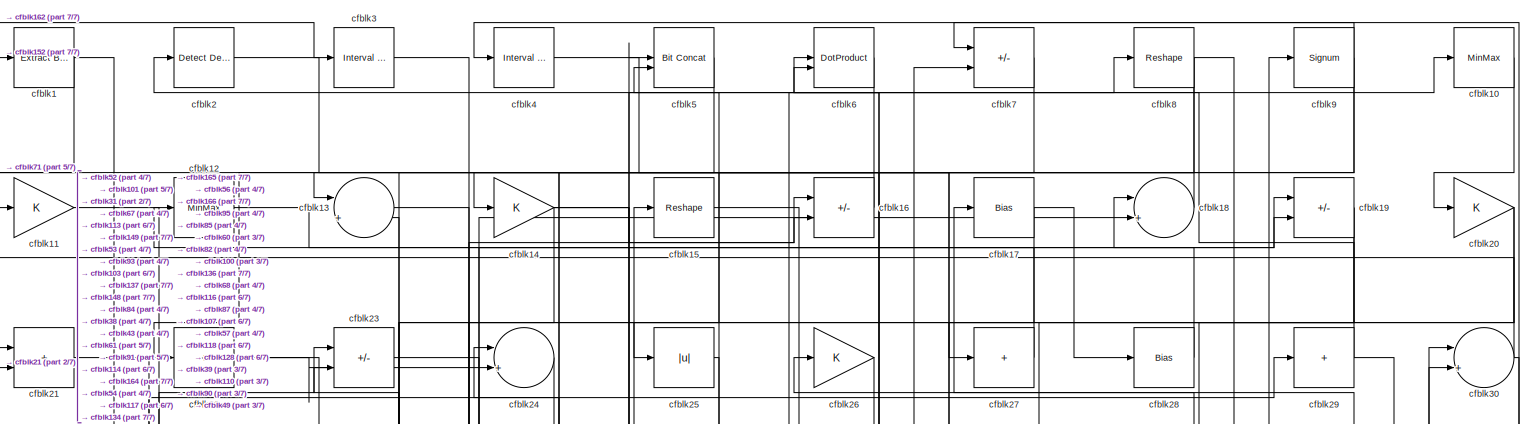
[diagram: root canvas - part 1/7, full width, top band]
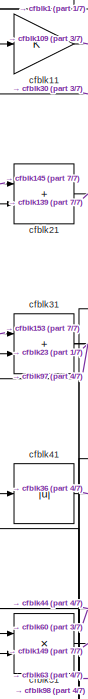
[diagram: root canvas - part 2/7, top left region]
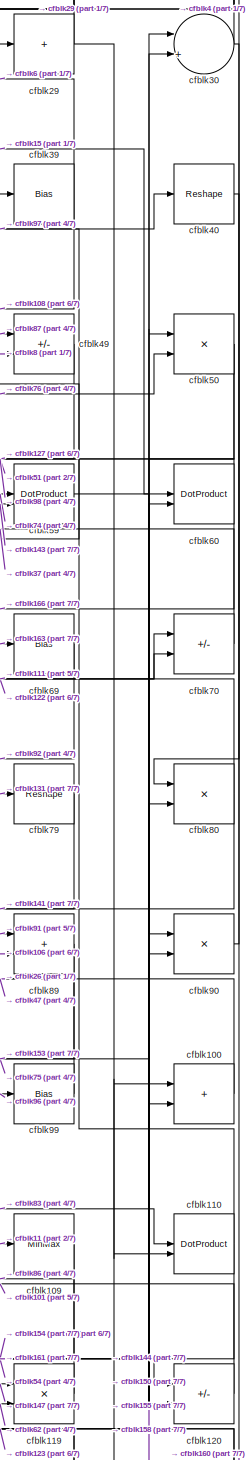
[diagram: root canvas - part 3/7, middle right region]
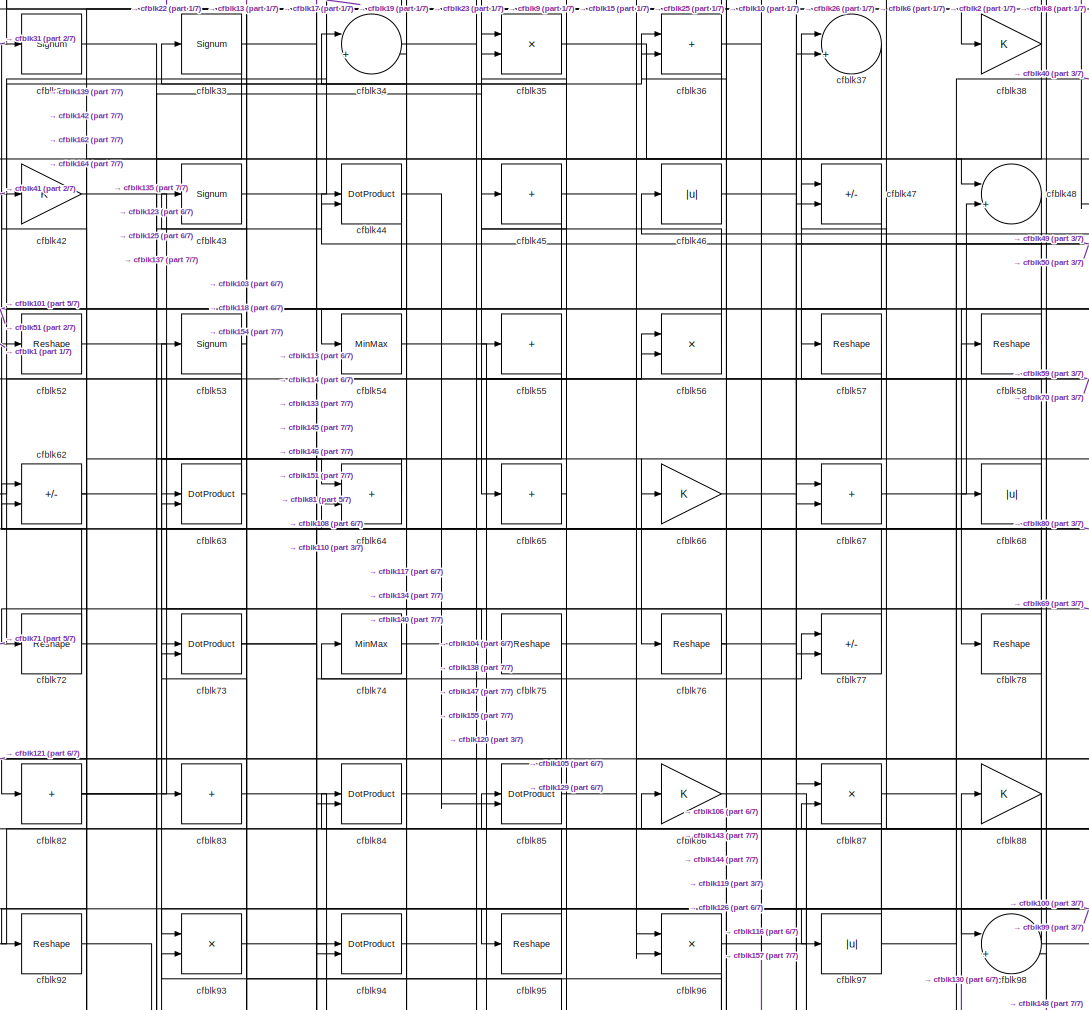
[diagram: root canvas - part 4/7, central region]
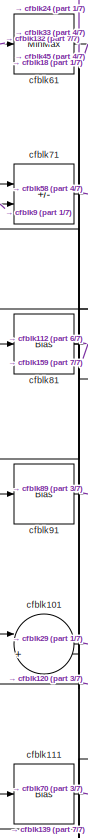
[diagram: root canvas - part 5/7, middle left region]
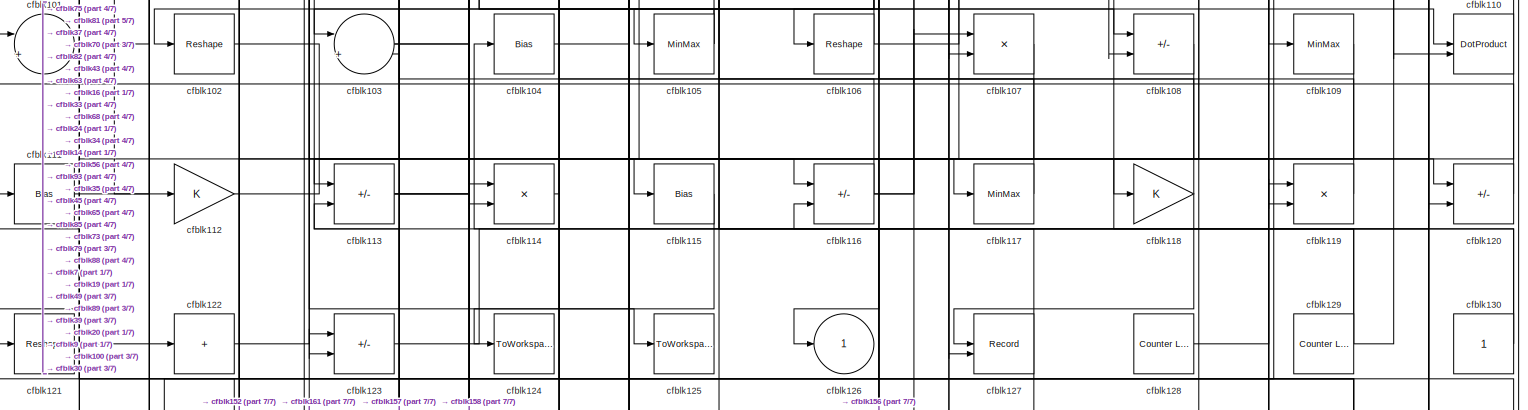
[diagram: root canvas - part 6/7, full width, bottom band]
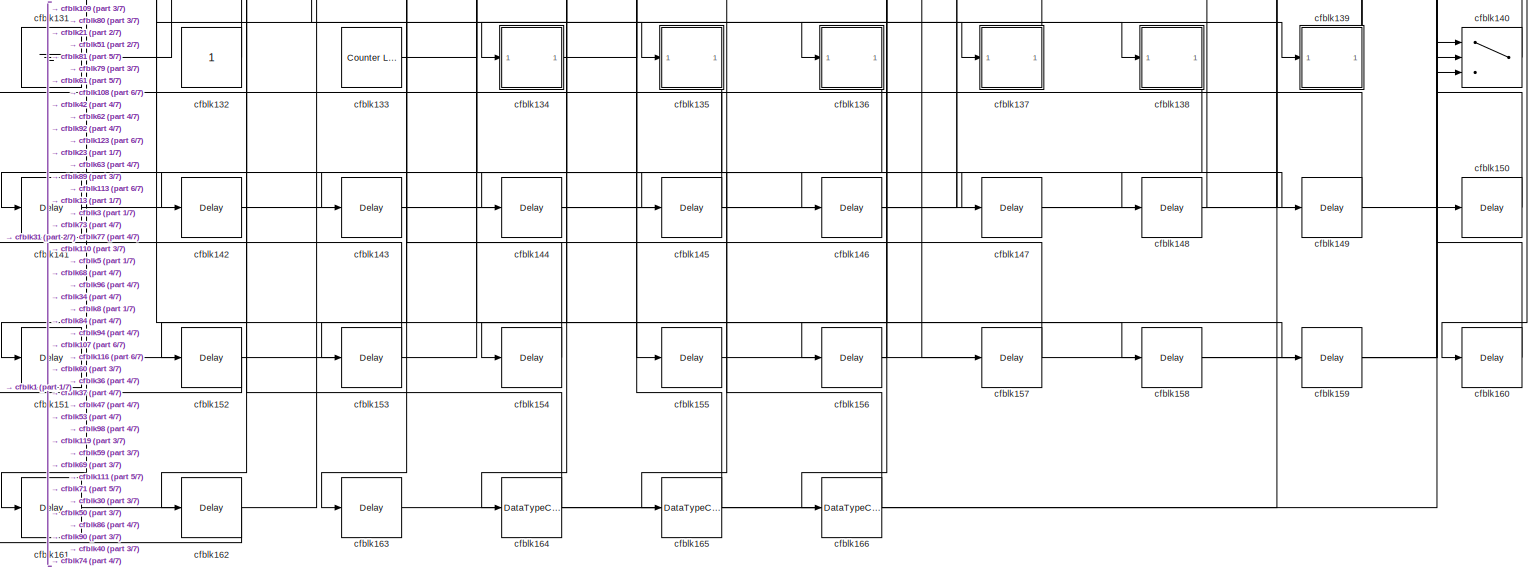
[diagram: root canvas - part 7/7, full width, bottom band]
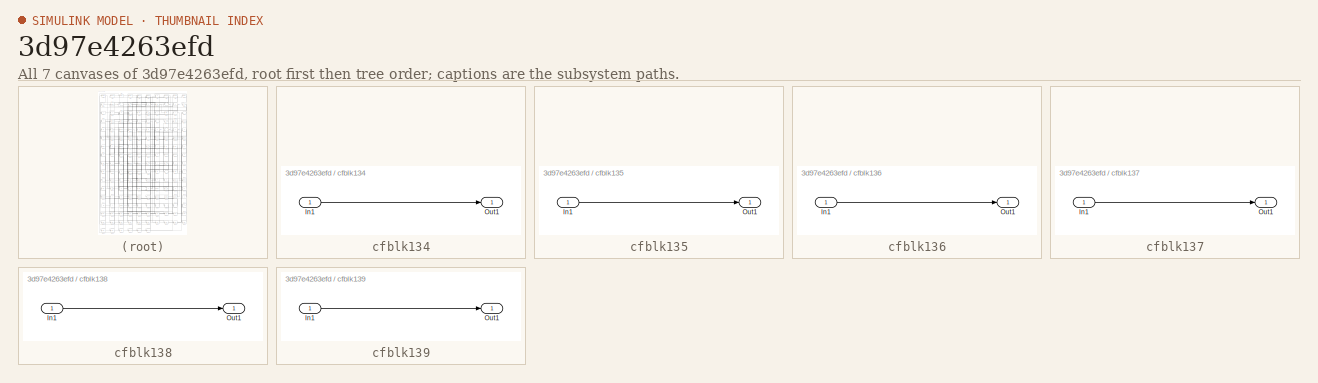
[diagram: thumbnail index - all 7 canvases of the model, root first then tree order]
MODEL slx_3d97e4263efd
KIND model
CONFIG AbsTol = auto
CONFIG EnableMultiTasking = off
CONFIG FixedStep = auto
CONFIG MaxStep = auto
CONFIG MinStep = auto
CONFIG RelTol = 1e-3
CONFIG SampleTimeConstraint = Unconstrained
CONFIG SolverName = VariableStepAuto
CONFIG StartTime = 0.0
CONFIG StopTime = 10.0
BLOCK [Reference] cfblk1  REF=simulink/Logic and Bit
Operations/Extract Bits
  LibrarySourceBlock = hdlsllib/Logic and Bit\nOperations/Extract Bits
  SourceBlock = simulink/Logic and Bit\nOperations/Extract Bits
  SourceType = Extract Bits
BLOCK [MinMax] cfblk10
BLOCK [Sum] cfblk100
  IconShape = rectangular
BLOCK [Sum] cfblk101
  Inputs = |++
BLOCK [Reshape] cfblk102
BLOCK [Sum] cfblk103
  Inputs = |++
BLOCK [Bias] cfblk104
  Bias = 0.0
  SaturateOnIntegerOverflow = off
BLOCK [MinMax] cfblk105
BLOCK [Reshape] cfblk106
BLOCK [Product] cfblk107
  Inputs = */
  RndMeth = Zero
  SaturateOnIntegerOverflow = on
BLOCK [Sum] cfblk108
  IconShape = rectangular
  Inputs = +-
BLOCK [MinMax] cfblk109
BLOCK [Gain] cfblk11
BLOCK [DotProduct] cfblk110
  OutDataTypeStr = Inherit: Inherit via internal rule
BLOCK [Bias] cfblk111
  Bias = 0.0
  SaturateOnIntegerOverflow = off
BLOCK [Gain] cfblk112
BLOCK [Sum] cfblk113
  IconShape = rectangular
  Inputs = +-
BLOCK [Product] cfblk114
  Inputs = */
  RndMeth = Zero
  SaturateOnIntegerOverflow = on
BLOCK [Bias] cfblk115
  Bias = 0.0
  SaturateOnIntegerOverflow = off
BLOCK [Sum] cfblk116
  IconShape = rectangular
  Inputs = +-
BLOCK [MinMax] cfblk117
BLOCK [Gain] cfblk118
BLOCK [Product] cfblk119
  Inputs = */
  RndMeth = Zero
  SaturateOnIntegerOverflow = on
BLOCK [MinMax] cfblk12
BLOCK [Sum] cfblk120
  IconShape = rectangular
  Inputs = +-
BLOCK [Reshape] cfblk121
BLOCK [Sum] cfblk122
  IconShape = rectangular
  Inputs = +
BLOCK [Sum] cfblk123
  IconShape = rectangular
  Inputs = +-
BLOCK [ToWorkspace] cfblk124
  MaxDataPoints = inf
  SampleTime = -1
  SaveFormat = Timeseries
  VariableName = simout
BLOCK [ToWorkspace] cfblk125
  MaxDataPoints = inf
  SampleTime = -1
  SaveFormat = Timeseries
  VariableName = simout
BLOCK [Outport] cfblk126
  VectorParamsAs1DForOutWhenUnconnected = off
BLOCK [Record] cfblk127
  CompatibilityTag = XY
  FileSettingsInternal = {"entries":[{"content":{"excelSettings":{"content":{},"type":"Streamout.ExcelSettings"}},"type":"Streamout.FileSettingStorage","uuid":""}],"packageUris":["http:\/\/schema.mathworks.com\/mf0\/streamout_blocks\/R2020a"],"version":"1.0"}
  Layout = [1 1]
  SignalsInternal = {"entries":[{"content":{},"type":"RecordBlkView.InputSignals","uuid":""}],"packageUris":["http:\/\/schema.mathworks.com\/mf0\/streamout_blocks\/R2020a"],"version":"1.0"}
  VisualizationBindings = {"xyplotplugin":{"info":[{"series":[{"bindingParametersList":[{"parameter":"X-Axis","signalID":1822,"signalName":"cfblk118"},{"parameter":"Y-Axis","signalID":1826,"signalName":"cfblk49"}],"seriesID":63146}],"subplotID":1}]}}
  st = -1
BLOCK [Reference] cfblk128  REF=hdlsllib/Sources/Counter
Limited
  SourceBlock = hdlsllib/Sources/Counter\nLimited
  SourceType = Counter Limited
BLOCK [Reference] cfblk129  REF=hdlsllib/Sources/Counter
Limited
  SourceBlock = hdlsllib/Sources/Counter\nLimited
  SourceType = Counter Limited
BLOCK [Sum] cfblk13
  Inputs = |++
BLOCK [Constant] cfblk130
  SampleTime = -1
BLOCK [Ground] cfblk131
BLOCK [Constant] cfblk132
  SampleTime = -1
BLOCK [Reference] cfblk133  REF=hdlsllib/Sources/Counter
Limited
  SourceBlock = hdlsllib/Sources/Counter\nLimited
  SourceType = Counter Limited
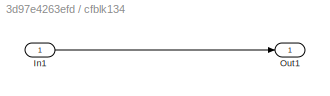
BLOCK [SubSystem] cfblk134
  LibrarySourceBlock = hdlsllib/Ports &\nSubsystems/Subsystem
BLOCK [Inport] cfblk134/In1
BLOCK [Outport] cfblk134/Out1
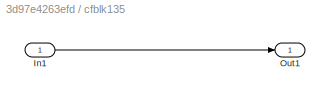
BLOCK [SubSystem] cfblk135
  LibrarySourceBlock = hdlsllib/Ports &\nSubsystems/Subsystem
BLOCK [Inport] cfblk135/In1
BLOCK [Outport] cfblk135/Out1
BLOCK [SubSystem] cfblk136
  LibrarySourceBlock = hdlsllib/Ports &\nSubsystems/Subsystem
BLOCK [Inport] cfblk136/In1
BLOCK [Outport] cfblk136/Out1
BLOCK [SubSystem] cfblk137
  LibrarySourceBlock = hdlsllib/Ports &\nSubsystems/Subsystem
BLOCK [Inport] cfblk137/In1
BLOCK [Outport] cfblk137/Out1
BLOCK [SubSystem] cfblk138
  LibrarySourceBlock = hdlsllib/Ports &\nSubsystems/Subsystem
BLOCK [Inport] cfblk138/In1
BLOCK [Outport] cfblk138/Out1
BLOCK [SubSystem] cfblk139
  LibrarySourceBlock = hdlsllib/Ports &\nSubsystems/Subsystem
BLOCK [Inport] cfblk139/In1
BLOCK [Outport] cfblk139/Out1
BLOCK [Gain] cfblk14
BLOCK [Switch] cfblk140
  InputSameDT = off
  SaturateOnIntegerOverflow = off
BLOCK [Delay] cfblk141
  InputPortMap = u0
  SampleTime = 1
BLOCK [Delay] cfblk142
  InputPortMap = u0
  SampleTime = 1
BLOCK [Delay] cfblk143
  InputPortMap = u0
  SampleTime = 1
BLOCK [Delay] cfblk144
  InputPortMap = u0
  SampleTime = 1
BLOCK [Delay] cfblk145
  InputPortMap = u0
  SampleTime = 1
BLOCK [Delay] cfblk146
  InputPortMap = u0
  SampleTime = 1
BLOCK [Delay] cfblk147
  InputPortMap = u0
  SampleTime = 1
BLOCK [Delay] cfblk148
  InputPortMap = u0
  SampleTime = 1
BLOCK [Delay] cfblk149
  InputPortMap = u0
  SampleTime = 1
BLOCK [Reshape] cfblk15
BLOCK [Delay] cfblk150
  InputPortMap = u0
  SampleTime = 1
BLOCK [Delay] cfblk151
  InputPortMap = u0
  SampleTime = 1
BLOCK [Delay] cfblk152
  InputPortMap = u0
  SampleTime = 1
BLOCK [Delay] cfblk153
  InputPortMap = u0
  SampleTime = 1
BLOCK [Delay] cfblk154
  InputPortMap = u0
  SampleTime = 1
BLOCK [Delay] cfblk155
  InputPortMap = u0
  SampleTime = 1
BLOCK [Delay] cfblk156
  InputPortMap = u0
  SampleTime = 1
BLOCK [Delay] cfblk157
  InputPortMap = u0
  SampleTime = 1
BLOCK [Delay] cfblk158
  InputPortMap = u0
  SampleTime = 1
BLOCK [Delay] cfblk159
  InputPortMap = u0
  SampleTime = 1
BLOCK [Sum] cfblk16
  IconShape = rectangular
  Inputs = +-
BLOCK [Delay] cfblk160
  InputPortMap = u0
  SampleTime = 1
BLOCK [Delay] cfblk161
  InputPortMap = u0
  SampleTime = 1
BLOCK [Delay] cfblk162
  InputPortMap = u0
  SampleTime = 1
BLOCK [Delay] cfblk163
  InputPortMap = u0
  SampleTime = 1
BLOCK [DataTypeConversion] cfblk164
  RndMeth = Floor
  SaturateOnIntegerOverflow = off
BLOCK [DataTypeConversion] cfblk165
  OutDataTypeStr = uint8
  RndMeth = Floor
  SaturateOnIntegerOverflow = off
BLOCK [DataTypeConversion] cfblk166
  OutDataTypeStr = uint8
  RndMeth = Floor
  SaturateOnIntegerOverflow = off
BLOCK [Bias] cfblk17
  Bias = 0.0
  SaturateOnIntegerOverflow = off
BLOCK [Sum] cfblk18
  Inputs = |++
BLOCK [Sum] cfblk19
  IconShape = rectangular
  Inputs = +-
BLOCK [Reference] cfblk2  REF=simulink/Logic and Bit
Operations/Detect
Decrease
  LibrarySourceBlock = hdlsllib/Logic and Bit\nOperations/Detect\nDecrease
  SourceBlock = simulink/Logic and Bit\nOperations/Detect\nDecrease
  SourceType = Detect Decrease
BLOCK [Gain] cfblk20
BLOCK [Sum] cfblk21
  IconShape = rectangular
BLOCK [Sum] cfblk22
  IconShape = rectangular
  Inputs = +
BLOCK [Sum] cfblk23
  IconShape = rectangular
  Inputs = +-
BLOCK [Sum] cfblk24
  Inputs = |++
BLOCK [Abs] cfblk25
  SaturateOnIntegerOverflow = off
BLOCK [Gain] cfblk26
BLOCK [Sum] cfblk27
  IconShape = rectangular
  Inputs = +
BLOCK [Bias] cfblk28
  Bias = 0.0
  SaturateOnIntegerOverflow = off
BLOCK [Sum] cfblk29
  IconShape = rectangular
  Inputs = +
BLOCK [Reference] cfblk3  REF=hdlsllib/Logic and Bit
Operations/Interval Test
  SourceBlock = hdlsllib/Logic and Bit\nOperations/Interval Test
  SourceType = Interval Test
BLOCK [Sum] cfblk30
  Inputs = |++
BLOCK [Sum] cfblk31
  IconShape = rectangular
BLOCK [Signum] cfblk32
BLOCK [Signum] cfblk33
BLOCK [Sum] cfblk34
  Inputs = |++
BLOCK [Product] cfblk35
  Inputs = */
  RndMeth = Zero
  SaturateOnIntegerOverflow = on
BLOCK [Sum] cfblk36
  IconShape = rectangular
BLOCK [Sum] cfblk37
  Inputs = |++
BLOCK [Gain] cfblk38
BLOCK [Bias] cfblk39
  Bias = 0.0
  SaturateOnIntegerOverflow = off
BLOCK [Reference] cfblk4  REF=hdlsllib/Logic and Bit
Operations/Interval Test
  SourceBlock = hdlsllib/Logic and Bit\nOperations/Interval Test
  SourceType = Interval Test
BLOCK [Reshape] cfblk40
BLOCK [Abs] cfblk41
  SaturateOnIntegerOverflow = off
BLOCK [Gain] cfblk42
BLOCK [Signum] cfblk43
BLOCK [DotProduct] cfblk44
  OutDataTypeStr = Inherit: Inherit via internal rule
BLOCK [Sum] cfblk45
  IconShape = rectangular
  Inputs = +
BLOCK [Abs] cfblk46
  SaturateOnIntegerOverflow = off
BLOCK [Sum] cfblk47
  IconShape = rectangular
  Inputs = +-
BLOCK [Sum] cfblk48
  Inputs = |++
BLOCK [Sum] cfblk49
  IconShape = rectangular
  Inputs = +-
BLOCK [Reference] cfblk5  REF=hdlsllib/Logic and Bit
Operations/Bit Concat
  SourceBlock = hdlsllib/Logic and Bit\nOperations/Bit Concat
  SourceType = Bit Concat
BLOCK [Product] cfblk50
  Inputs = */
  RndMeth = Zero
  SaturateOnIntegerOverflow = on
BLOCK [Product] cfblk51
  Inputs = */
  RndMeth = Zero
  SaturateOnIntegerOverflow = on
BLOCK [Reshape] cfblk52
BLOCK [Signum] cfblk53
BLOCK [MinMax] cfblk54
BLOCK [Sum] cfblk55
  IconShape = rectangular
  Inputs = +
BLOCK [Product] cfblk56
  Inputs = */
  RndMeth = Zero
  SaturateOnIntegerOverflow = on
BLOCK [Reshape] cfblk57
BLOCK [Reshape] cfblk58
BLOCK [DotProduct] cfblk59
  OutDataTypeStr = Inherit: Inherit via internal rule
BLOCK [DotProduct] cfblk6
  OutDataTypeStr = Inherit: Inherit via internal rule
BLOCK [DotProduct] cfblk60
  OutDataTypeStr = Inherit: Inherit via internal rule
BLOCK [MinMax] cfblk61
BLOCK [Sum] cfblk62
  IconShape = rectangular
  Inputs = +-
BLOCK [DotProduct] cfblk63
  OutDataTypeStr = Inherit: Inherit via internal rule
BLOCK [Sum] cfblk64
  IconShape = rectangular
BLOCK [Sum] cfblk65
  IconShape = rectangular
  Inputs = +
BLOCK [Gain] cfblk66
BLOCK [Sum] cfblk67
  IconShape = rectangular
BLOCK [Abs] cfblk68
  SaturateOnIntegerOverflow = off
BLOCK [Bias] cfblk69
  Bias = 0.0
  SaturateOnIntegerOverflow = off
BLOCK [Sum] cfblk7
  IconShape = rectangular
  Inputs = +-
BLOCK [Sum] cfblk70
  IconShape = rectangular
  Inputs = +-
BLOCK [Sum] cfblk71
  IconShape = rectangular
  Inputs = +-
BLOCK [Reshape] cfblk72
BLOCK [DotProduct] cfblk73
  OutDataTypeStr = Inherit: Inherit via internal rule
BLOCK [MinMax] cfblk74
BLOCK [Reshape] cfblk75
BLOCK [Reshape] cfblk76
BLOCK [Sum] cfblk77
  IconShape = rectangular
  Inputs = +-
BLOCK [Reshape] cfblk78
BLOCK [Reshape] cfblk79
BLOCK [Reshape] cfblk8
BLOCK [Product] cfblk80
  Inputs = */
  RndMeth = Zero
  SaturateOnIntegerOverflow = on
BLOCK [Bias] cfblk81
  Bias = 0.0
  SaturateOnIntegerOverflow = off
BLOCK [Sum] cfblk82
  IconShape = rectangular
  Inputs = +
BLOCK [Sum] cfblk83
  IconShape = rectangular
  Inputs = +
BLOCK [DotProduct] cfblk84
  OutDataTypeStr = Inherit: Inherit via internal rule
BLOCK [DotProduct] cfblk85
  OutDataTypeStr = Inherit: Inherit via internal rule
BLOCK [Gain] cfblk86
BLOCK [Product] cfblk87
  Inputs = */
  RndMeth = Zero
  SaturateOnIntegerOverflow = on
BLOCK [Gain] cfblk88
BLOCK [Sum] cfblk89
  IconShape = rectangular
BLOCK [Signum] cfblk9
BLOCK [Product] cfblk90
  Inputs = */
  RndMeth = Zero
  SaturateOnIntegerOverflow = on
BLOCK [Bias] cfblk91
  Bias = 0.0
  SaturateOnIntegerOverflow = off
BLOCK [Reshape] cfblk92
BLOCK [Product] cfblk93
  Inputs = */
  RndMeth = Zero
  SaturateOnIntegerOverflow = on
BLOCK [DotProduct] cfblk94
  OutDataTypeStr = Inherit: Inherit via internal rule
BLOCK [Reshape] cfblk95
BLOCK [Product] cfblk96
  Inputs = */
  RndMeth = Zero
  SaturateOnIntegerOverflow = on
BLOCK [Abs] cfblk97
  SaturateOnIntegerOverflow = off
BLOCK [Sum] cfblk98
  Inputs = |++
BLOCK [Bias] cfblk99
  Bias = 0.0
  SaturateOnIntegerOverflow = off
LINE cfblk100:1 -> cfblk26:1
LINE cfblk101:1 -> cfblk29:1
LINE cfblk102:1 -> cfblk116:1
NET cfblk103:1 -> cfblk114:2, cfblk16:1
LINE cfblk104:1 -> cfblk56:1
NET cfblk105:1 -> cfblk102:1, cfblk93:2
NET cfblk106:1 -> cfblk73:2, cfblk89:2
LINE cfblk107:1 -> cfblk156:1
LINE cfblk108:1 -> cfblk152:1
LINE cfblk109:1 -> cfblk161:1
LINE cfblk10:1 -> cfblk20:1
NET cfblk110:1 -> cfblk154:1, cfblk39:1
LINE cfblk111:1 -> cfblk70:2
LINE cfblk112:1 -> cfblk115:1
NET cfblk113:1 -> cfblk158:1, cfblk56:2, cfblk68:1
LINE cfblk114:1 -> cfblk24:1
LINE cfblk115:1 -> cfblk124:1
NET cfblk116:1 -> cfblk107:1, cfblk45:1, cfblk7:2
LINE cfblk117:1 -> cfblk34:1
NET cfblk118:1 -> cfblk127:1, cfblk43:1
LINE cfblk119:1 -> cfblk86:1
LINE cfblk11:1 -> cfblk109:1
LINE cfblk120:1 -> cfblk101:1
LINE cfblk121:1 -> cfblk122:1
LINE cfblk122:1 -> cfblk70:1
LINE cfblk123:1 -> cfblk30:1
LINE cfblk128:1 -> cfblk9:1
NET cfblk129:1 -> cfblk100:1, cfblk104:1, cfblk35:2
LINE cfblk12:1 -> cfblk19:2
NET cfblk130:1 -> cfblk85:1, cfblk88:1
LINE cfblk131:1 -> cfblk79:1
LINE cfblk132:1 -> cfblk61:1
LINE cfblk133:1 -> cfblk77:1
LINE cfblk134/In1:1 -> cfblk134/Out1:1
LINE cfblk134:1 -> cfblk8:1
LINE cfblk135/In1:1 -> cfblk135/Out1:1
LINE cfblk135:1 -> cfblk163:1
LINE cfblk136/In1:1 -> cfblk136/Out1:1
LINE cfblk136:1 -> cfblk165:1
LINE cfblk137/In1:1 -> cfblk137/Out1:1
LINE cfblk137:1 -> cfblk53:1
LINE cfblk138/In1:1 -> cfblk138/Out1:1
LINE cfblk138:1 -> cfblk151:1
LINE cfblk139/In1:1 -> cfblk139/Out1:1
NET cfblk139:1 -> cfblk111:1, cfblk62:2, cfblk71:1
LINE cfblk13:1 -> cfblk148:1
LINE cfblk140:1 -> cfblk74:1
LINE cfblk141:1 -> cfblk30:2
LINE cfblk142:1 -> cfblk37:2
LINE cfblk143:1 -> cfblk59:2
LINE cfblk144:1 -> cfblk90:2
LINE cfblk145:1 -> cfblk21:1
LINE cfblk146:1 -> cfblk47:2
LINE cfblk147:1 -> cfblk119:1
LINE cfblk148:1 -> cfblk98:2
LINE cfblk149:1 -> cfblk23:2
NET cfblk14:1 -> cfblk113:1, cfblk117:1, cfblk16:2
LINE cfblk150:1 -> cfblk50:1
LINE cfblk151:1 -> cfblk94:1
LINE cfblk152:1 -> cfblk1:1
LINE cfblk153:1 -> cfblk31:1
LINE cfblk154:1 -> cfblk63:2
LINE cfblk155:1 -> cfblk60:2
LINE cfblk156:1 -> cfblk116:2
LINE cfblk157:1 -> cfblk113:2
LINE cfblk158:1 -> cfblk80:2
LINE cfblk159:1 -> cfblk140:3
LINE cfblk15:1 -> cfblk60:1
LINE cfblk160:1 -> cfblk140:1
LINE cfblk161:1 -> cfblk123:1
LINE cfblk162:1 -> cfblk3:1
LINE cfblk163:1 -> cfblk69:1
NET cfblk164:1 -> cfblk150:1, cfblk42:1
LINE cfblk165:1 -> cfblk5:1
LINE cfblk166:1 -> cfblk5:2
LINE cfblk16:1 -> cfblk13:1
NET cfblk17:1 -> cfblk28:1, cfblk84:2
LINE cfblk18:1 -> cfblk14:1
NET cfblk19:1 -> cfblk107:2, cfblk57:1
NET cfblk1:1 -> cfblk21:2, cfblk52:1
NET cfblk20:1 -> cfblk103:2, cfblk118:1
LINE cfblk21:1 -> cfblk139:1
NET cfblk22:1 -> cfblk24:2, cfblk67:1
LINE cfblk23:1 -> cfblk38:1
LINE cfblk24:1 -> cfblk91:1
LINE cfblk25:1 -> cfblk95:1
LINE cfblk26:1 -> cfblk82:1
LINE cfblk27:1 -> cfblk12:1
LINE cfblk28:1 -> cfblk18:1
NET cfblk29:1 -> cfblk110:2, cfblk2:1
LINE cfblk2:1 -> cfblk87:1
NET cfblk30:1 -> cfblk11:1, cfblk80:1
NET cfblk31:1 -> cfblk23:1, cfblk97:1
LINE cfblk32:1 -> cfblk66:1
NET cfblk33:1 -> cfblk114:1, cfblk81:1
LINE cfblk34:1 -> cfblk147:1
LINE cfblk35:1 -> cfblk48:1
NET cfblk36:1 -> cfblk157:1, cfblk65:1
LINE cfblk37:1 -> cfblk123:2
NET cfblk38:1 -> cfblk17:1, cfblk72:1
NET cfblk39:1 -> cfblk108:2, cfblk6:1
LINE cfblk3:1 -> cfblk137:1
LINE cfblk40:1 -> cfblk160:1
LINE cfblk41:1 -> cfblk36:1
LINE cfblk42:1 -> cfblk64:1
LINE cfblk43:1 -> cfblk19:1
NET cfblk44:1 -> cfblk51:2, cfblk85:2
NET cfblk45:1 -> cfblk101:2, cfblk96:1
LINE cfblk46:1 -> cfblk67:2
LINE cfblk47:1 -> cfblk73:1
LINE cfblk48:1 -> cfblk78:1
LINE cfblk49:1 -> cfblk127:2
LINE cfblk4:1 -> cfblk27:1
NET cfblk50:1 -> cfblk120:2, cfblk98:1
LINE cfblk51:1 -> cfblk149:1
LINE cfblk52:1 -> cfblk75:1
NET cfblk53:1 -> cfblk13:2, cfblk162:1
LINE cfblk54:1 -> cfblk120:1
LINE cfblk55:1 -> cfblk83:1
LINE cfblk56:1 -> cfblk15:1
LINE cfblk57:1 -> cfblk76:1
LINE cfblk58:1 -> cfblk44:1
LINE cfblk59:1 -> cfblk90:1
LINE cfblk5:1 -> cfblk164:1
NET cfblk60:1 -> cfblk166:1, cfblk51:1
LINE cfblk61:1 -> cfblk18:2
NET cfblk62:1 -> cfblk119:2, cfblk142:1
NET cfblk63:1 -> cfblk103:1, cfblk41:1
LINE cfblk64:1 -> cfblk63:1
LINE cfblk65:1 -> cfblk105:1
LINE cfblk66:1 -> cfblk77:2
LINE cfblk67:1 -> cfblk48:2
NET cfblk68:1 -> cfblk134:1, cfblk6:2
LINE cfblk69:1 -> cfblk92:1
LINE cfblk6:1 -> cfblk22:1
LINE cfblk70:1 -> cfblk37:1
LINE cfblk71:1 -> cfblk58:1
NET cfblk72:1 -> cfblk32:1, cfblk35:1
NET cfblk73:1 -> cfblk145:1, cfblk146:1
LINE cfblk74:1 -> cfblk59:1
NET cfblk75:1 -> cfblk100:2, cfblk121:1
NET cfblk76:1 -> cfblk36:2, cfblk50:2
LINE cfblk77:1 -> cfblk33:1
NET cfblk78:1 -> cfblk34:2, cfblk96:2
LINE cfblk79:1 -> cfblk106:1
LINE cfblk7:1 -> cfblk25:1
NET cfblk80:1 -> cfblk141:1, cfblk62:1
NET cfblk81:1 -> cfblk112:1, cfblk159:1
NET cfblk82:1 -> cfblk125:1, cfblk44:2, cfblk64:2
LINE cfblk83:1 -> cfblk110:1
LINE cfblk84:1 -> cfblk155:1
LINE cfblk85:1 -> cfblk10:1
LINE cfblk86:1 -> cfblk140:2
NET cfblk87:1 -> cfblk49:1, cfblk94:2
NET cfblk88:1 -> cfblk126:1, cfblk87:2
LINE cfblk89:1 -> cfblk153:1
NET cfblk8:1 -> cfblk136:1, cfblk49:2, cfblk93:1
LINE cfblk90:1 -> cfblk4:1
LINE cfblk91:1 -> cfblk89:1
LINE cfblk92:1 -> cfblk135:1
LINE cfblk93:1 -> cfblk108:1
LINE cfblk94:1 -> cfblk138:1
LINE cfblk95:1 -> cfblk84:1
NET cfblk96:1 -> cfblk143:1, cfblk144:1, cfblk99:1
NET cfblk97:1 -> cfblk40:1, cfblk55:1
NET cfblk98:1 -> cfblk31:2, cfblk46:1
LINE cfblk99:1 -> cfblk47:1
NET cfblk9:1 -> cfblk54:1, cfblk71:2, cfblk7:1
note: NET lines group one-source signal fan-out (src -> all destinations, sorted); 1:1 wires keep LINE
